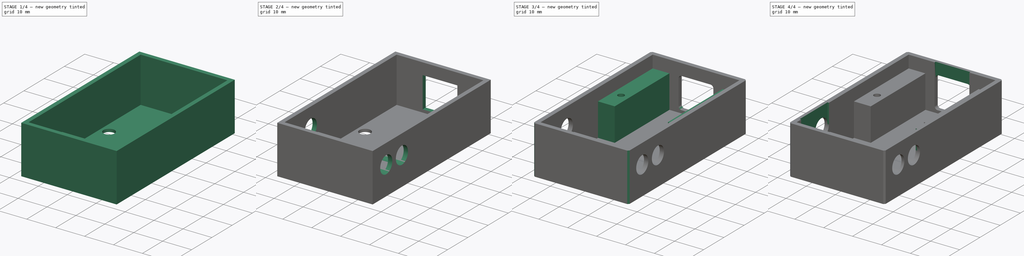
[diagram: build sequence overview — one tinted view per stage of 4, left to right]
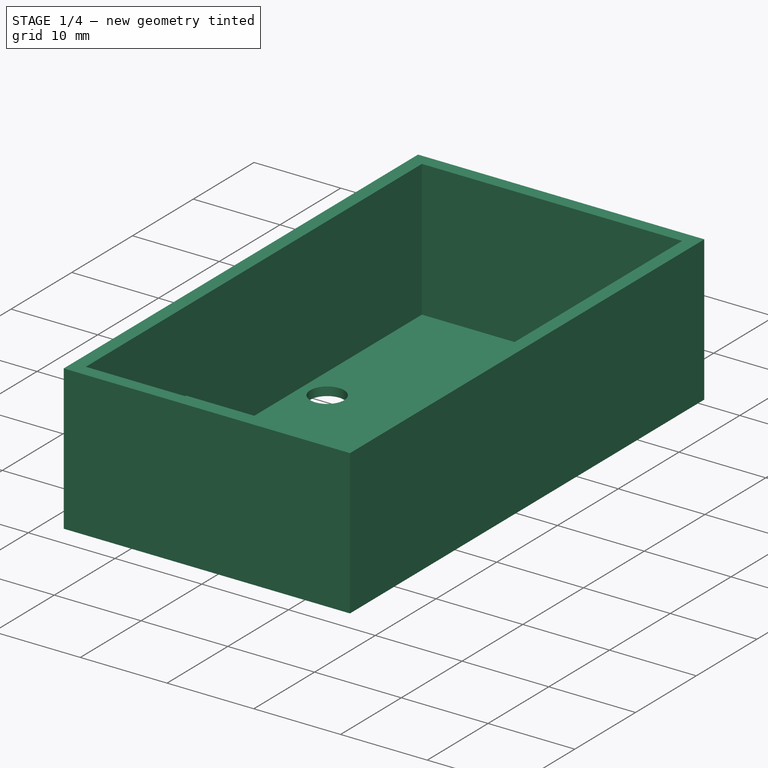
[diagram: stage 1 of 4 — iso view after this stage's code; geometry added in this stage tinted green]
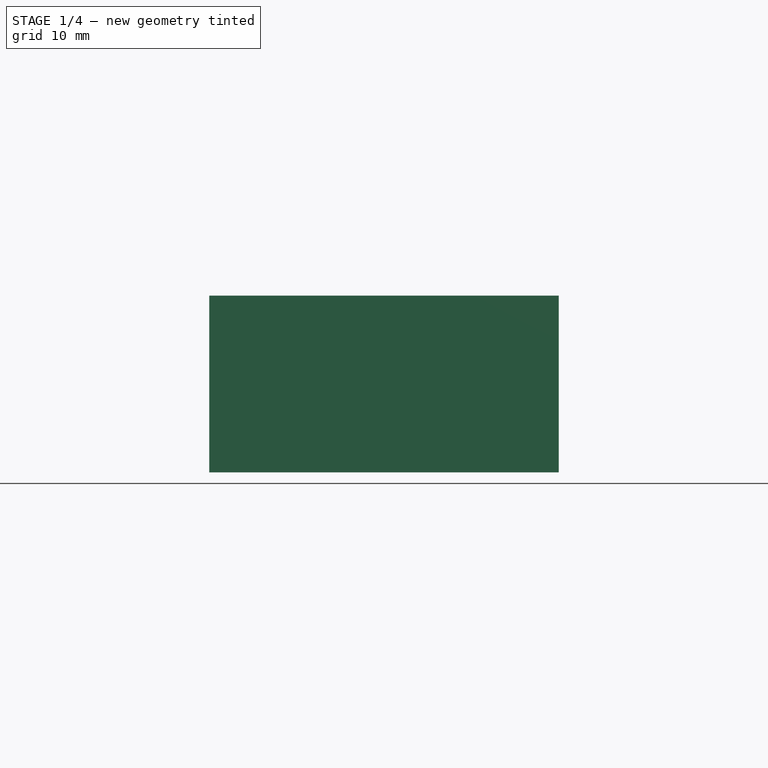
[diagram: stage 1 of 4 — front view after this stage's code; geometry added in this stage tinted green]
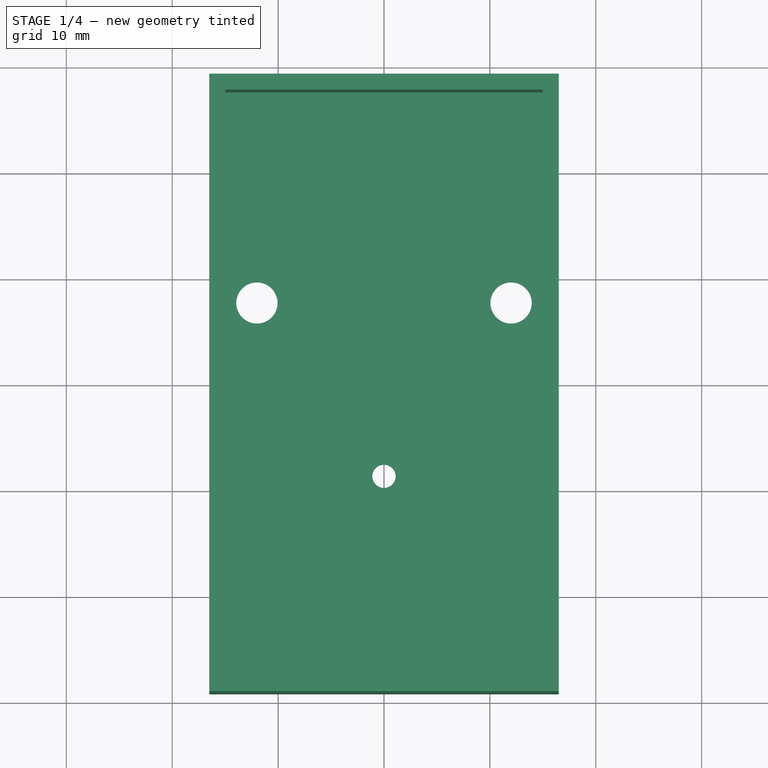
[diagram: stage 1 of 4 — top view after this stage's code; geometry added in this stage tinted green]
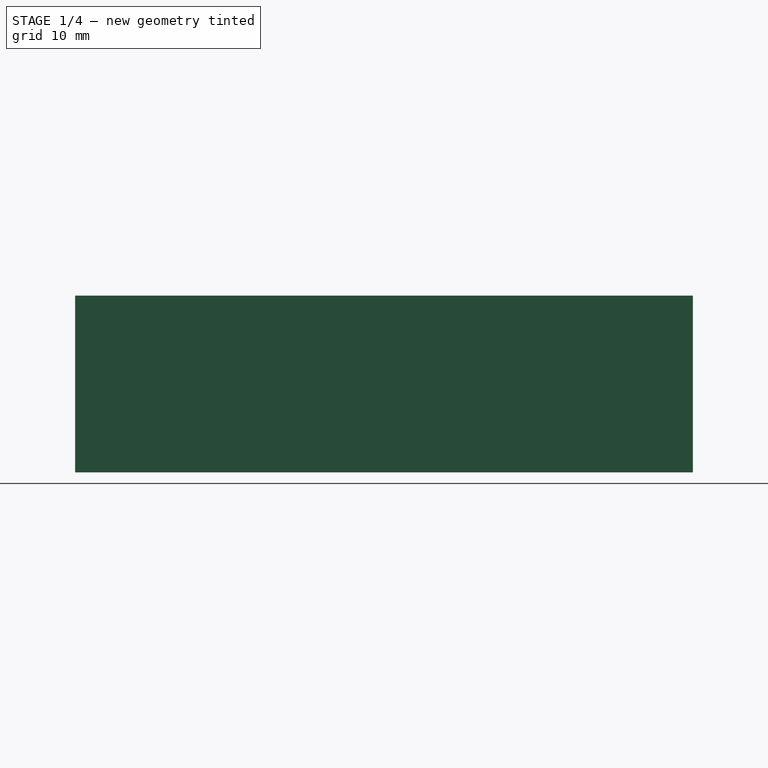
[diagram: stage 1 of 4 — right view after this stage's code; geometry added in this stage tinted green]
FCSTD DOCUMENT  (FreeCAD 1.0R39319 (Git))
Label: bay-bot-1.1
License: All rights reserved
LicenseURL: https://en.wikipedia.org/wiki/All_rights_reserved
objects: Sketcher::SketchObject×9, PartDesign::Pad×4, PartDesign::Pocket×4, PartDesign::Mirrored×2, PartDesign::Hole×1, PartDesign::Chamfer×1, PartDesign::Fillet×1, PartDesign::Body×1
note: 56 computed .brp shape members not serialized (recipe doc carries the construction recipe); baked Part::Feature solids carry a one-line shape summary decoded from their .brp

FEATURE [Sketcher::SketchObject] Sketch
  ArcFitTolerance = 1e-06
  AttachmentSupport = -> [XY_Plane]
  FullyConstrained = true
  MakeInternals = false
  MapMode = 5
  sketch-geometry (14):
    g0: LineSegment StartX=-15 StartY=27.665 StartZ=0 EndX=-15 EndY=-27.665 EndZ=0
    g1: LineSegment StartX=-15 StartY=-27.665 StartZ=0 EndX=15 EndY=-27.665 EndZ=0
    g2: LineSegment StartX=15 StartY=-27.665 StartZ=0 EndX=15 EndY=27.665 EndZ=0
    g3: LineSegment StartX=15 StartY=27.665 StartZ=0 EndX=-15 EndY=27.665 EndZ=0
    g4: GeomPoint [constr] X=0 Y=0 Z=0
    g5: LineSegment [constr] StartX=-14.25 StartY=-26.9165 StartZ=0 EndX=14.25 EndY=-26.9165 EndZ=0
    g6: LineSegment [constr] StartX=14.25 StartY=-26.9165 StartZ=0 EndX=14.25 EndY=26.9165 EndZ=0
    g7: LineSegment [constr] StartX=14.25 StartY=26.9165 StartZ=0 EndX=-14.25 EndY=26.9165 EndZ=0
    g8: LineSegment [constr] StartX=-14.25 StartY=26.9165 StartZ=0 EndX=-14.25 EndY=-26.9165 EndZ=0
    g9: GeomPoint [constr] X=0 Y=0 Z=0
    g10: Circle CenterX=-12 CenterY=7.7865 CenterZ=0 NormalX=0 NormalY=0 NormalZ=1 AngleXU=0 Radius=1.95
    g11: Circle CenterX=12 CenterY=7.7865 CenterZ=0 NormalX=0 NormalY=0 NormalZ=1 AngleXU=0 Radius=1.95
    g12: LineSegment [constr] StartX=-12 StartY=7.7865 StartZ=0 EndX=12 EndY=7.7865 EndZ=0
    g13: Circle CenterX=0 CenterY=-8.5835 CenterZ=0 NormalX=0 NormalY=0 NormalZ=1 AngleXU=0 Radius=1.1
  constraints (34):
    c: Coincident(g0,g1)
    c: Coincident(g1,g2)
    c: Coincident(g2,g3)
    c: Coincident(g3,g0)
    c: Vertical(g0)
    c: Vertical(g2)
    c: Horizontal(g1)
    c: Horizontal(g3)
    c: Symmetric(g2,g0,g4)
    c: Coincident(g4,g-1)
    c: DistanceX(g3,g3) = 30
    c: DistanceY(g2,g2) = 55.33
    c: Coincident(g5,g6)
    c: Coincident(g6,g7)
    c: Coincident(g7,g8)
    c: Coincident(g8,g5)
    c: Horizontal(g5)
    c: Horizontal(g7)
    c: Vertical(g6)
    c: Vertical(g8)
    c: Symmetric(g7,g5,g9)
    c: Coincident(g9,g4)
    c: DistanceX(g7,g7) = 28.5
    c: DistanceY(g6,g6) = 53.833
    c: Equal(g10,g11)
    c: Coincident(g12,g10)
    c: Coincident(g12,g11)
    c: DistanceX(g7,g10) = 2.25
    c: DistanceY(g10,g7) = 19.13
    c: Symmetric(g10,g11,g-2)
    c: Diameter(g10) = 3.9
    c: PointOnObject(g13,g-2)
    c: Distance(g13,g7) = 35.5
    c: Diameter(g13) = 2.2
FEATURE [PartDesign::Pad] Pad
  Direction = (0,0,1)
  Length = 1
  Length2 = 10
  Profile = -> Sketch
  ReferenceAxis = -> Sketch [N_Axis]
  Refine = true
  Suppressed = false
  Type = 0
FEATURE [Sketcher::SketchObject] Sketch001
  ArcFitTolerance = 1e-06
  AttachmentSupport = -> [Pad]
  ExternalGeometry = -> [Pad]
  FullyConstrained = true
  MakeInternals = false
  MapMode = 5
  Placement = pos=(0,0,0) rot=(1,0,0;3.14159rad)
  sketch-geometry (10):
    g0: LineSegment StartX=-16.5 StartY=29.165 StartZ=0 EndX=-16.5 EndY=-29.165 EndZ=0
    g1: LineSegment StartX=-16.5 StartY=-29.165 StartZ=0 EndX=16.5 EndY=-29.165 EndZ=0
    g2: LineSegment StartX=16.5 StartY=-29.165 StartZ=0 EndX=16.5 EndY=29.165 EndZ=0
    g3: LineSegment StartX=16.5 StartY=29.165 StartZ=0 EndX=-16.5 EndY=29.165 EndZ=0
    g4: GeomPoint [constr] X=0 Y=0 Z=0
    g5: LineSegment StartX=-15 StartY=-27.665 StartZ=0 EndX=15 EndY=-27.665 EndZ=0
    g6: LineSegment StartX=15 StartY=-27.665 StartZ=0 EndX=15 EndY=27.665 EndZ=0
    g7: LineSegment StartX=15 StartY=27.665 StartZ=0 EndX=-15 EndY=27.665 EndZ=0
    g8: LineSegment StartX=-15 StartY=27.665 StartZ=0 EndX=-15 EndY=-27.665 EndZ=0
    g9: GeomPoint [constr] X=0 Y=0 Z=0
  constraints (23):
    c: Coincident(g0,g1)
    c: Coincident(g1,g2)
    c: Coincident(g2,g3)
    c: Coincident(g3,g0)
    c: Vertical(g0)
    c: Vertical(g2)
    c: Horizontal(g1)
    c: Horizontal(g3)
    c: Symmetric(g2,g0,g4)
    c: Coincident(g4,g-1)
    c: Distance(g2,g-3) = 1.5
    c: Distance(g-4,g3) = 1.5
    c: Coincident(g5,g6)
    c: Coincident(g6,g7)
    c: Coincident(g7,g8)
    c: Coincident(g8,g5)
    c: Horizontal(g5)
    c: Horizontal(g7)
    c: Vertical(g6)
    c: Vertical(g8)
    c: Symmetric(g7,g5,g9)
    c: Coincident(g9,g4)
    c: Coincident(g6,g-4)
FEATURE [PartDesign::Pad] Pad001
  BaseFeature = -> Pad
  Direction = (0,0,-1)
  Length = 16.7
  Length2 = 10
  Profile = -> Sketch001
  ReferenceAxis = -> Sketch001 [N_Axis]
  Refine = true
  Reversed = true
  Suppressed = false
  Type = 0
FEATURE [Sketcher::SketchObject] Sketch002
  ArcFitTolerance = 1e-06
  AttachmentSupport = -> [Pad001]
  ExternalGeometry = -> [Pad001]
  FullyConstrained = true
  MakeInternals = false
  MapMode = 5
  Placement = pos=(0,0,1) rot=(0,0,1;0rad)
  sketch-geometry (4):
    g0: LineSegment StartX=-15 StartY=-27.665 StartZ=0 EndX=15 EndY=-27.665 EndZ=0
    g1: LineSegment StartX=15 StartY=-27.665 StartZ=0 EndX=15 EndY=-11.165 EndZ=0
    g2: LineSegment StartX=15 StartY=-11.165 StartZ=0 EndX=-15 EndY=-11.165 EndZ=0
    g3: LineSegment StartX=-15 StartY=-11.165 StartZ=0 EndX=-15 EndY=-27.665 EndZ=0
  constraints (10):
    c: Coincident(g0,g1)
    c: Coincident(g1,g2)
    c: Coincident(g2,g3)
    c: Coincident(g3,g0)
    c: Horizontal(g2)
    c: Vertical(g1)
    c: Vertical(g3)
    c: Coincident(g0,g-3)
    c: Coincident(g0,g-3)
    c: DistanceY(g1,g1) = 16.5
FEATURE [PartDesign::Pad] Pad002
  BaseFeature = -> Pad001
  Direction = (0,0,1)
  Length = 6.4
  Length2 = 10
  Profile = -> Sketch002
  ReferenceAxis = -> Sketch002 [N_Axis]
  Refine = true
  Suppressed = false
  Type = 0
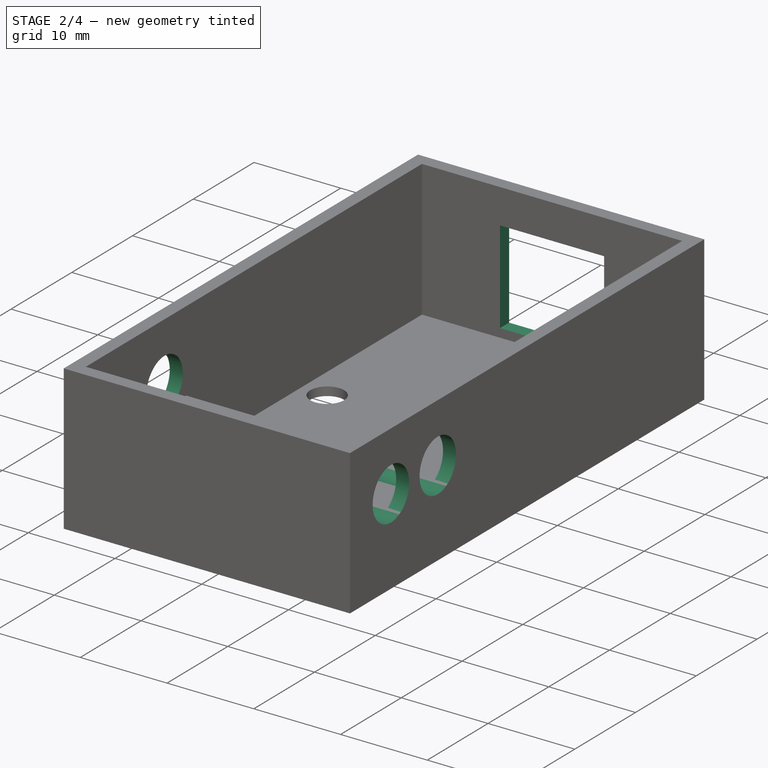
[diagram: stage 2 of 4 — iso view after this stage's code; geometry added in this stage tinted green]
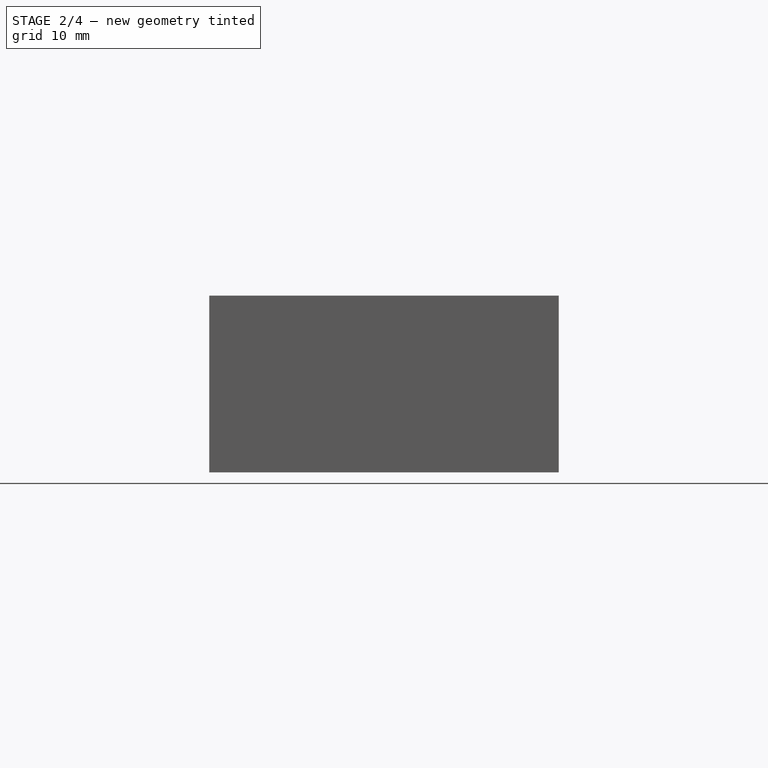
[diagram: stage 2 of 4 — front view after this stage's code; geometry added in this stage tinted green]
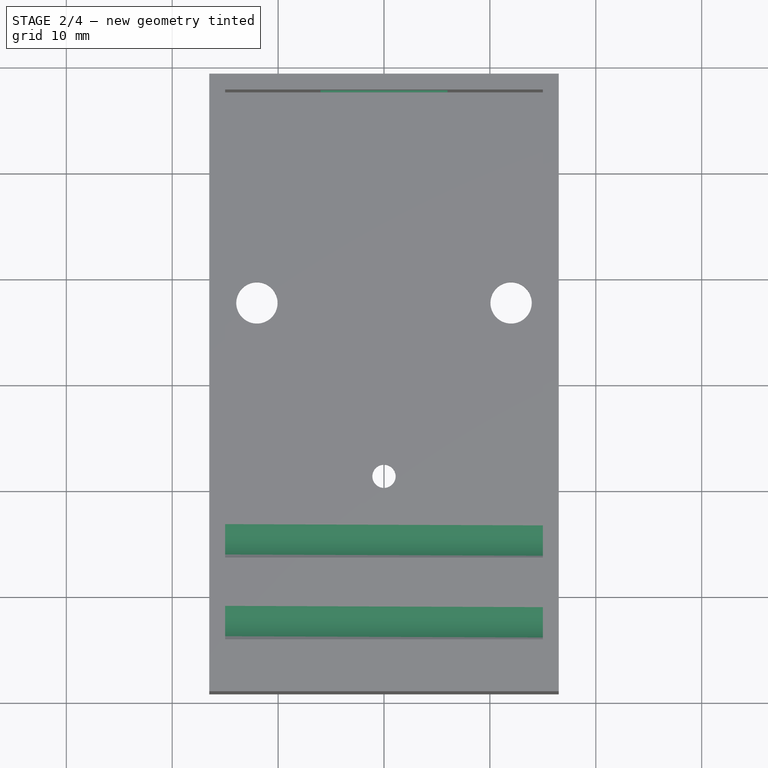
[diagram: stage 2 of 4 — top view after this stage's code; geometry added in this stage tinted green]
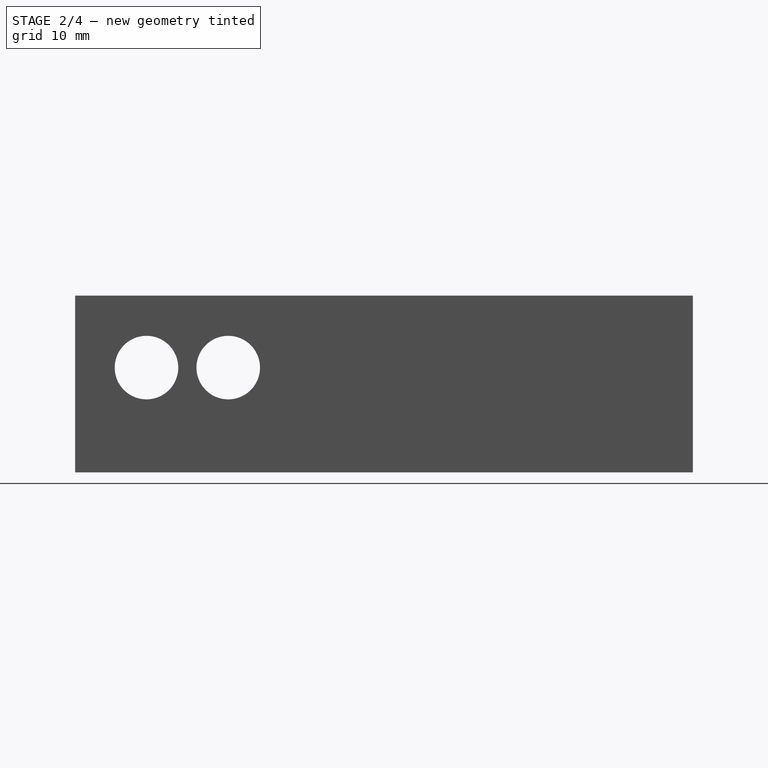
[diagram: stage 2 of 4 — right view after this stage's code; geometry added in this stage tinted green]
FEATURE [Sketcher::SketchObject] Sketch005
  ArcFitTolerance = 1e-06
  AttachmentSupport = -> [Pad002]
  FullyConstrained = true
  MakeInternals = false
  MapMode = 5
  Placement = pos=(16.5,0,0) rot=(0.57735,0.57735,0.57735;2.0944rad)
  sketch-geometry (4):
    g0: Circle CenterX=-22.4285 CenterY=9.9 CenterZ=0 NormalX=0 NormalY=0 NormalZ=1 AngleXU=0 Radius=3
    g1: Circle CenterX=-14.7085 CenterY=9.9 CenterZ=0 NormalX=0 NormalY=0 NormalZ=1 AngleXU=0 Radius=3
    g2: LineSegment [constr] StartX=-22.4285 StartY=9.9 StartZ=0 EndX=-14.7085 EndY=9.9 EndZ=0
    g3: GeomPoint [constr] X=24.7915 Y=8.4 Z=0
  constraints (9):
    c: Coincident(g2,g0)
    c: Coincident(g2,g1)
    c: Horizontal(g2)
    c: Equal(g0,g1)
    c: Diameter(g0) = 6
    c: DistanceX(g2,g2) = 7.72
    c: Distance(g-3,g2) = 5.5
    c: Symmetric(g-4,g-4,g3)
    c: DistanceX(g1,g3) = 39.5
FEATURE [PartDesign::Pocket] Pocket
  BaseFeature = -> Pad002
  Direction = (-1,0,0)
  Length = 17
  Length2 = 5
  Profile = -> Sketch005
  ReferenceAxis = -> Sketch005 [N_Axis]
  Refine = true
  Suppressed = false
  Type = 0
FEATURE [PartDesign::Mirrored] Mirrored
  BaseFeature = -> Pocket
  MirrorPlane = -> YZ_Plane
  Originals = -> [Pocket]
  Refine = true
  Suppressed = false
  TransformMode = 0
FEATURE [Sketcher::SketchObject] Sketch006
  ArcFitTolerance = 1e-06
  AttachmentSupport = -> [Mirrored]
  ExternalGeometry = -> [Mirrored]
  FullyConstrained = true
  MakeInternals = false
  MapMode = 5
  Placement = pos=(0,29.165,0) rot=(0,0.707107,0.707107;3.14159rad)
  sketch-geometry (5):
    g0: LineSegment StartX=-6 StartY=2 StartZ=0 EndX=6 EndY=2 EndZ=0
    g1: LineSegment StartX=6 StartY=2 StartZ=0 EndX=6 EndY=12.7 EndZ=0
    g2: LineSegment StartX=6 StartY=12.7 StartZ=0 EndX=-6 EndY=12.7 EndZ=0
    g3: LineSegment StartX=-6 StartY=12.7 StartZ=0 EndX=-6 EndY=2 EndZ=0
    g4: GeomPoint [constr] X=0 Y=7.35 Z=0
  constraints (13):
    c: Coincident(g0,g1)
    c: Coincident(g1,g2)
    c: Coincident(g2,g3)
    c: Coincident(g3,g0)
    c: Horizontal(g0)
    c: Horizontal(g2)
    c: Vertical(g1)
    c: Vertical(g3)
    c: Symmetric(g2,g0,g4)
    c: PointOnObject(g4,g-2)
    c: DistanceX(g0,g0) = 12
    c: Distance(g2,g-3) = 4
    c: Distance(g-1,g0) = 2
FEATURE [PartDesign::Pocket] Pocket001
  BaseFeature = -> Mirrored
  Direction = (0,-1,2e-16)
  Length = 0
  Length2 = 5
  Profile = -> Sketch006
  ReferenceAxis = -> Sketch006 [N_Axis]
  Refine = true
  Suppressed = false
  Type = 3
  UpToFace = -> Mirrored [Face10]
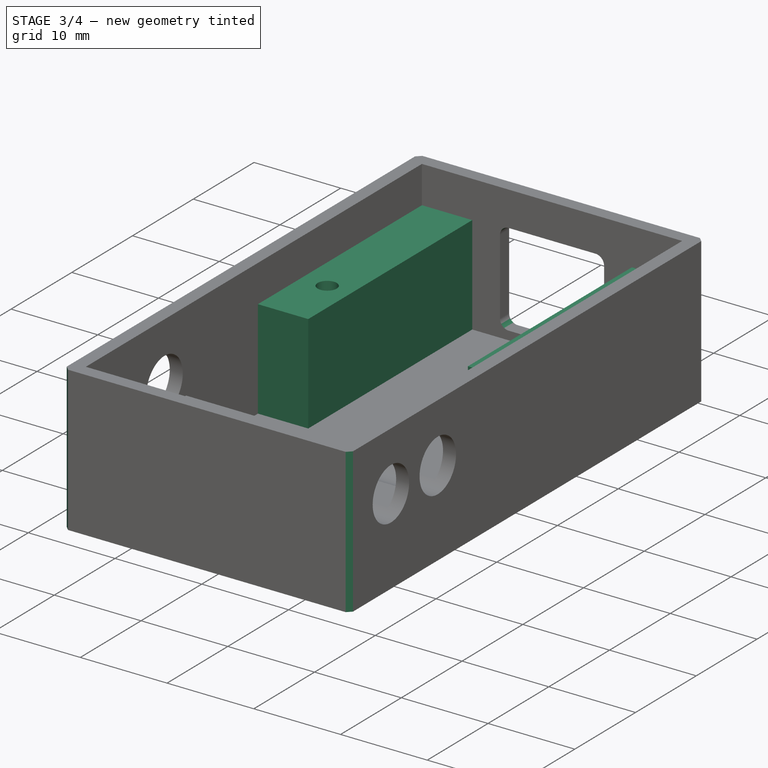
[diagram: stage 3 of 4 — iso view after this stage's code; geometry added in this stage tinted green]
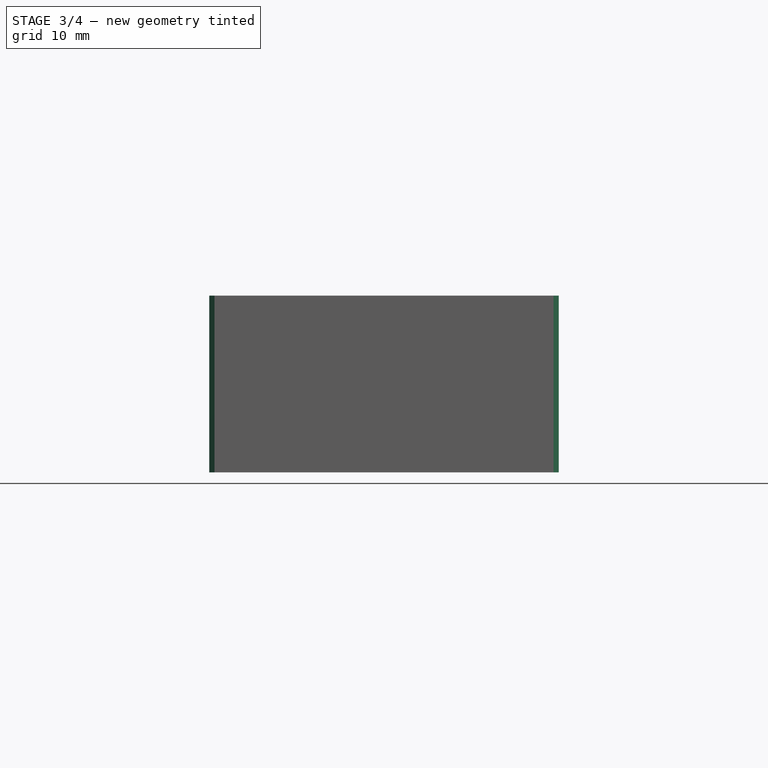
[diagram: stage 3 of 4 — front view after this stage's code; geometry added in this stage tinted green]
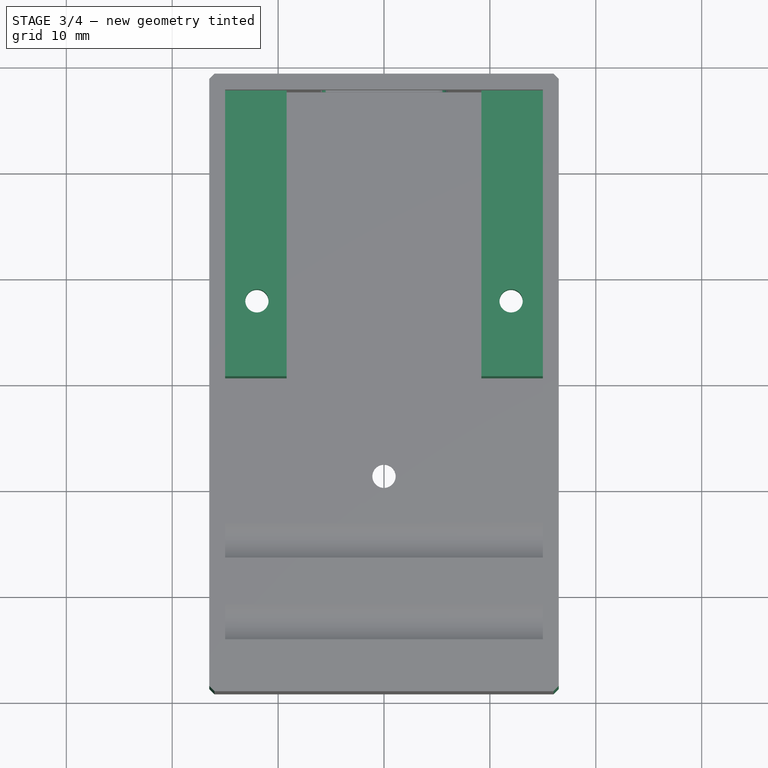
[diagram: stage 3 of 4 — top view after this stage's code; geometry added in this stage tinted green]
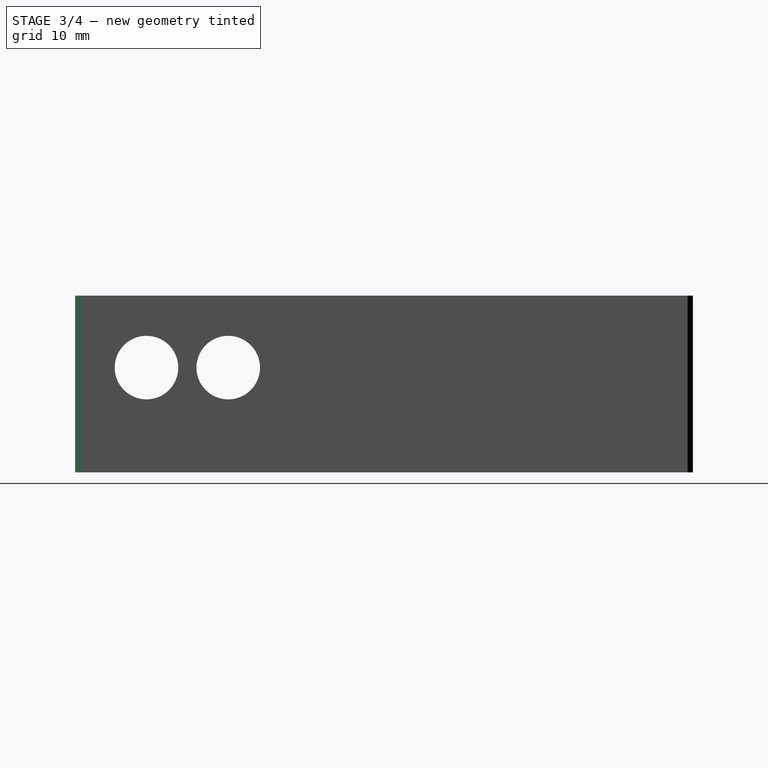
[diagram: stage 3 of 4 — right view after this stage's code; geometry added in this stage tinted green]
FEATURE [Sketcher::SketchObject] Sketch007
  ArcFitTolerance = 1e-06
  AttachmentSupport = -> [Pocket001]
  ExternalGeometry = -> [Pocket001]
  FullyConstrained = true
  MakeInternals = false
  MapMode = 5
  Placement = pos=(0,0,1) rot=(0,0,1;0rad)
  sketch-geometry (8):
    g0: LineSegment StartX=-15 StartY=27.665 StartZ=0 EndX=-15 EndY=0.665 EndZ=0
    g1: LineSegment StartX=-15 StartY=0.665 StartZ=0 EndX=-9.2 EndY=0.665 EndZ=0
    g2: LineSegment StartX=-9.2 StartY=0.665 StartZ=0 EndX=-9.2 EndY=27.665 EndZ=0
    g3: LineSegment StartX=-9.2 StartY=27.665 StartZ=0 EndX=-15 EndY=27.665 EndZ=0
    g4: LineSegment StartX=15 StartY=27.665 StartZ=0 EndX=9.2 EndY=27.665 EndZ=0
    g5: LineSegment StartX=9.2 StartY=27.665 StartZ=0 EndX=9.2 EndY=0.665 EndZ=0
    g6: LineSegment StartX=9.2 StartY=0.665 StartZ=0 EndX=15 EndY=0.665 EndZ=0
    g7: LineSegment StartX=15 StartY=0.665 StartZ=0 EndX=15 EndY=27.665 EndZ=0
  constraints (22):
    c: Coincident(g0,g1)
    c: Coincident(g1,g2)
    c: Coincident(g2,g3)
    c: Coincident(g3,g0)
    c: Vertical(g0)
    c: Vertical(g2)
    c: Horizontal(g1)
    c: Horizontal(g3)
    c: Coincident(g0,g-3)
    c: Coincident(g4,g5)
    c: Coincident(g5,g6)
    c: Coincident(g6,g7)
    c: Coincident(g7,g4)
    c: Horizontal(g4)
    c: Horizontal(g6)
    c: Vertical(g5)
    c: Vertical(g7)
    c: Coincident(g4,g-3)
    c: Equal(g1,g6)
    c: Equal(g2,g5)
    c: Distance(g5,g2) = 18.4
    c: DistanceY(g2,g2) = 27
FEATURE [PartDesign::Pad] Pad003
  BaseFeature = -> Pocket001
  Direction = (0,0,1)
  Length = 11.4
  Length2 = 10
  Profile = -> Sketch007
  ReferenceAxis = -> Sketch007 [N_Axis]
  Refine = true
  Suppressed = false
  Type = 0
FEATURE [Sketcher::SketchObject] Sketch008
  ArcFitTolerance = 1e-06
  AttachmentSupport = -> [Pad003]
  ExternalGeometry = -> [Pad003]
  FullyConstrained = true
  MakeInternals = false
  MapMode = 5
  Placement = pos=(0,0,0) rot=(1,0,0;3.14159rad)
  sketch-geometry (2):
    g0: Circle CenterX=-12 CenterY=-7.7865 CenterZ=0 NormalX=0 NormalY=0 NormalZ=1 AngleXU=0 Radius=1.95
    g1: Circle CenterX=12 CenterY=-7.7865 CenterZ=0 NormalX=0 NormalY=0 NormalZ=1 AngleXU=0 Radius=1.95
  constraints (4):
    c: Coincident(g0,g-3)
    c: Coincident(g1,g-4)
    c: Equal(g0,g1)
    c: Equal(g0,g-3)
FEATURE [PartDesign::Hole] Hole
  BaseFeature = -> Pad003
  CustomThreadClearance = 0
  Depth = 139.516
  DepthType = 1
  Diameter = 2.2
  DrillForDepth = false
  DrillPoint = 1
  DrillPointAngle = 118
  HoleCutCountersinkAngle = 90
  HoleCutCustomValues = false
  HoleCutDepth = 7.4
  HoleCutDiameter = 4
  HoleCutType = 1
  ModelThread = false
  Profile = -> Sketch008
  Refine = true
  Suppressed = false
  Tapered = false
  TaperedAngle = 90
  ThreadClass = 0
  ThreadDepth = 139.516
  ThreadDepthType = 0
  ThreadDirection = 0
  ThreadFit = 0
  ThreadSize = 0
  ThreadType = 0
  Threaded = false
  UseCustomThreadClearance = false
FEATURE [PartDesign::Chamfer] Chamfer001
  Angle = 45
  Base = -> Hole [Edge7,Edge1,Edge21,Edge4]
  BaseFeature = -> Hole
  ChamferType = 0
  FlipDirection = false
  Refine = true
  Size = 0.5
  Size2 = 1
  SupportTransform = false
  Suppressed = false
  UseAllEdges = false
FEATURE [PartDesign::Fillet] Fillet
  Base = -> Chamfer001 [Edge91,Edge92,Edge94,Edge93]
  BaseFeature = -> Chamfer001
  Radius = 1
  Refine = true
  SupportTransform = false
  Suppressed = false
  UseAllEdges = false
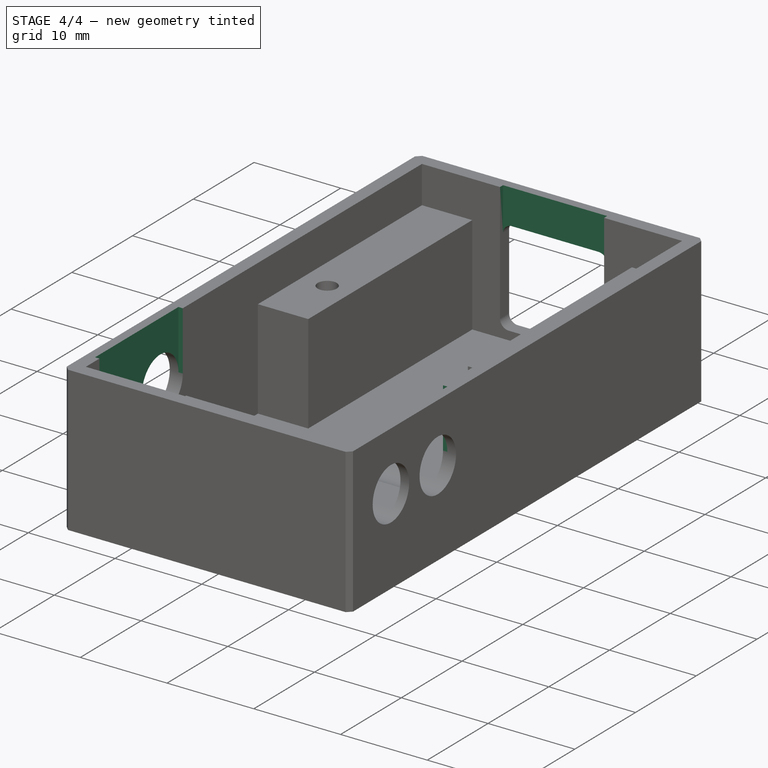
[diagram: stage 4 of 4 — iso view after this stage's code; geometry added in this stage tinted green]
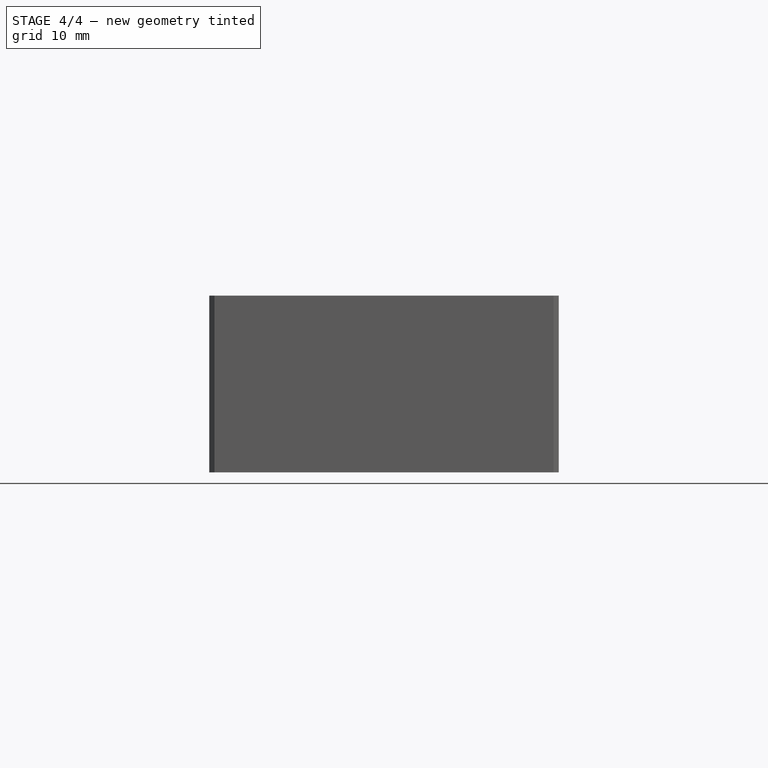
[diagram: stage 4 of 4 — front view after this stage's code; geometry added in this stage tinted green]
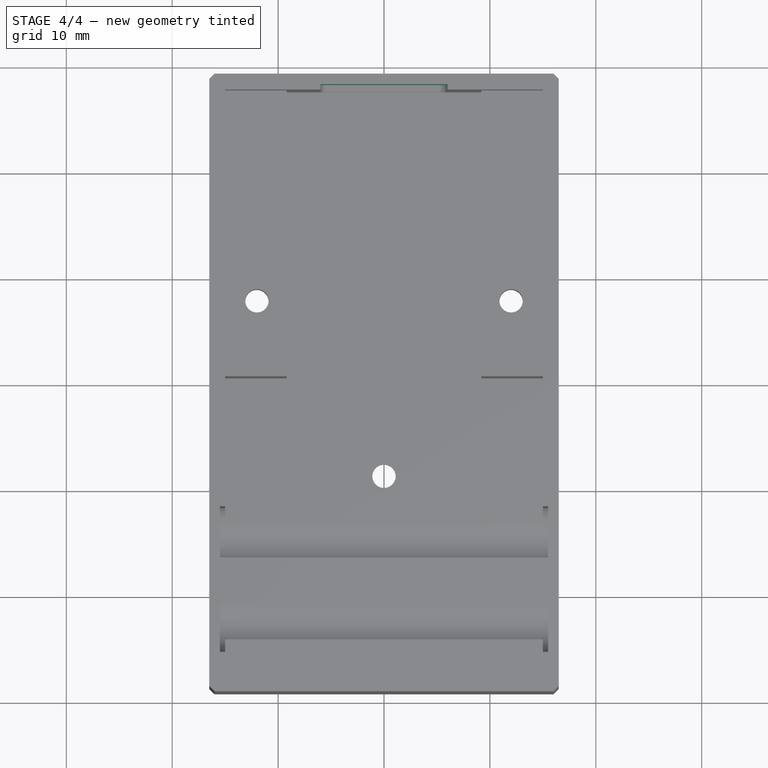
[diagram: stage 4 of 4 — top view after this stage's code; geometry added in this stage tinted green]
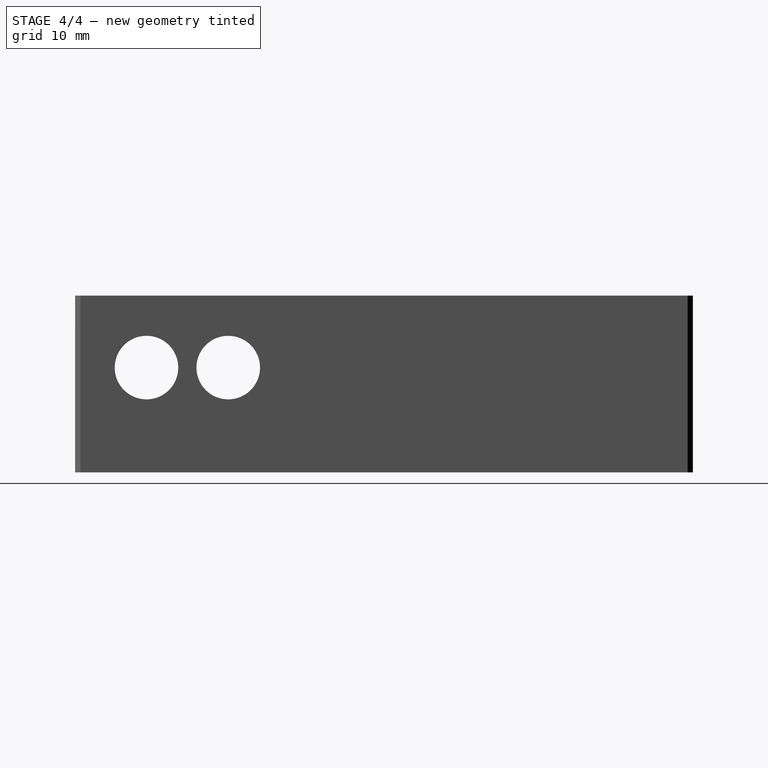
[diagram: stage 4 of 4 — right view after this stage's code; geometry added in this stage tinted green]
FEATURE [Sketcher::SketchObject] Sketch011
  ArcFitTolerance = 1e-06
  ExternalGeometry = -> [Fillet]
  FullyConstrained = true
  MakeInternals = false
  MapMode = 5
  Placement = pos=(15,0,0) rot=(0.57735,-0.57735,-0.57735;2.0944rad)
  sketch-geometry (6):
    g0: LineSegment StartX=11.7085 StartY=9.9 StartZ=0 EndX=11.7085 EndY=16.7 EndZ=0
    g1: LineSegment StartX=11.7085 StartY=16.7 StartZ=0 EndX=25.4285 EndY=16.7 EndZ=0
    g2: LineSegment StartX=25.4285 StartY=16.7 StartZ=0 EndX=25.4285 EndY=9.9 EndZ=0
    g3: LineSegment StartX=11.7085 StartY=9.9 StartZ=0 EndX=16.3668 EndY=7.4 EndZ=0
    g4: LineSegment StartX=16.3668 StartY=7.4 StartZ=0 EndX=20.7702 EndY=7.4 EndZ=0
    g5: LineSegment StartX=20.7702 StartY=7.4 StartZ=0 EndX=25.4285 EndY=9.9 EndZ=0
  constraints (16):
    c: Coincident(g0,g1)
    c: Horizontal(g1)
    c: Coincident(g1,g2)
    c: Vertical(g2)
    c: Vertical(g0)
    c: Coincident(g0,g3)
    c: Coincident(g3,g4)
    c: Horizontal(g4)
    c: Coincident(g4,g5)
    c: Coincident(g5,g2)
    c: Equal(g3,g5)
    c: PointOnObject(g0,g-3)
    c: Coincident(g0,g-4)
    c: Coincident(g3,g-4)
    c: Horizontal(g0,g2)
    c: Tangent(g2,g-5)
FEATURE [PartDesign::Pocket] Pocket003
  BaseFeature = -> Fillet
  Direction = (1,-1e-16,1e-16)
  Length = 0.5
  Length2 = 5
  Profile = -> Sketch011
  ReferenceAxis = -> Sketch011 [N_Axis]
  Refine = true
  Suppressed = false
  Type = 0
FEATURE [PartDesign::Mirrored] Mirrored001
  BaseFeature = -> Pocket003
  MirrorPlane = -> YZ_Plane
  Originals = -> [Pocket003]
  Refine = true
  Suppressed = false
  TransformMode = 0
FEATURE [Sketcher::SketchObject] Sketch012
  ArcFitTolerance = 1e-06
  AttachmentSupport = -> [Mirrored001]
  ExternalGeometry = -> [Mirrored001]
  FullyConstrained = true
  MakeInternals = false
  MapMode = 5
  Placement = pos=(0,27.665,0) rot=(1,0,0;1.5708rad)
  sketch-geometry (4):
    g0: LineSegment StartX=-6 StartY=16.7 StartZ=0 EndX=-6 EndY=7.35 EndZ=0
    g1: LineSegment StartX=-6 StartY=7.35 StartZ=0 EndX=6 EndY=7.35 EndZ=0
    g2: LineSegment StartX=6 StartY=7.35 StartZ=0 EndX=6 EndY=16.7 EndZ=0
    g3: LineSegment StartX=6 StartY=16.7 StartZ=0 EndX=-6 EndY=16.7 EndZ=0
  constraints (11):
    c: Coincident(g0,g1)
    c: Coincident(g1,g2)
    c: Coincident(g2,g3)
    c: Coincident(g3,g0)
    c: Vertical(g0)
    c: Vertical(g2)
    c: Horizontal(g1)
    c: Horizontal(g3)
    c: PointOnObject(g0,g-5)
    c: Symmetric(g-4,g-4,g1)
    c: PointOnObject(g0,g-3)
FEATURE [PartDesign::Pocket] Pocket004
  BaseFeature = -> Mirrored001
  Direction = (0,1,-2e-16)
  Length = 0.5
  Length2 = 5
  Profile = -> Sketch012
  ReferenceAxis = -> Sketch012 [N_Axis]
  Refine = true
  Suppressed = false
  Type = 0
FEATURE [PartDesign::Body] Body
  AllowCompound = false
  Group = -> [Sketch,Pad,Sketch001,Pad001,Sketch002,Pad002,Sketch005,Pocket,Mirrored,Sketch006,Pocket001,Sketch007,Pad003,Sketch008,Hole,Chamfer001,Fillet,Sketch011,Pocket003,Mirrored001,Sketch012,Pocket004]
  Origin = -> Origin
  Tip = -> Pocket004
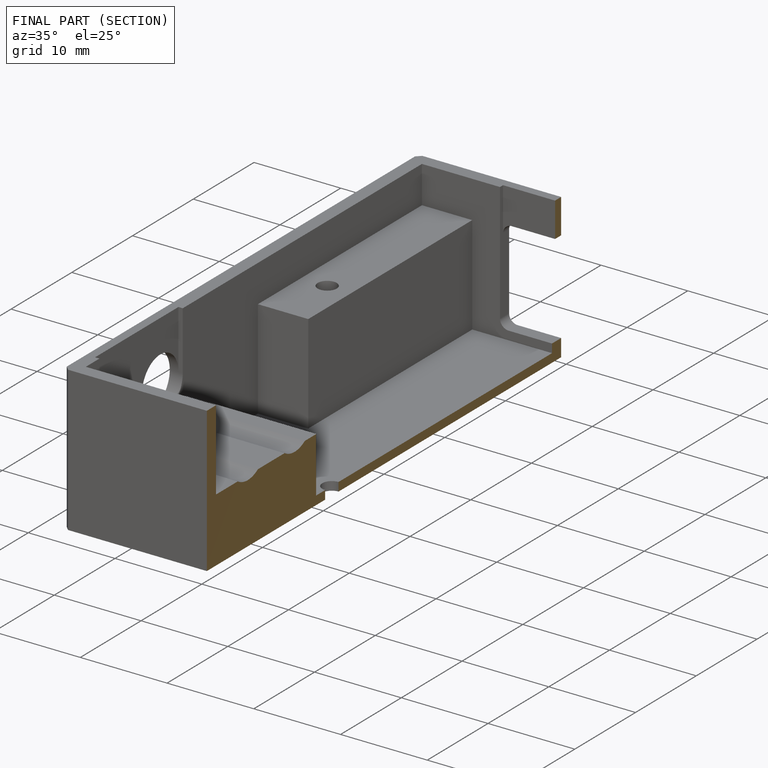
[diagram: finished part — half-section view (interior)]
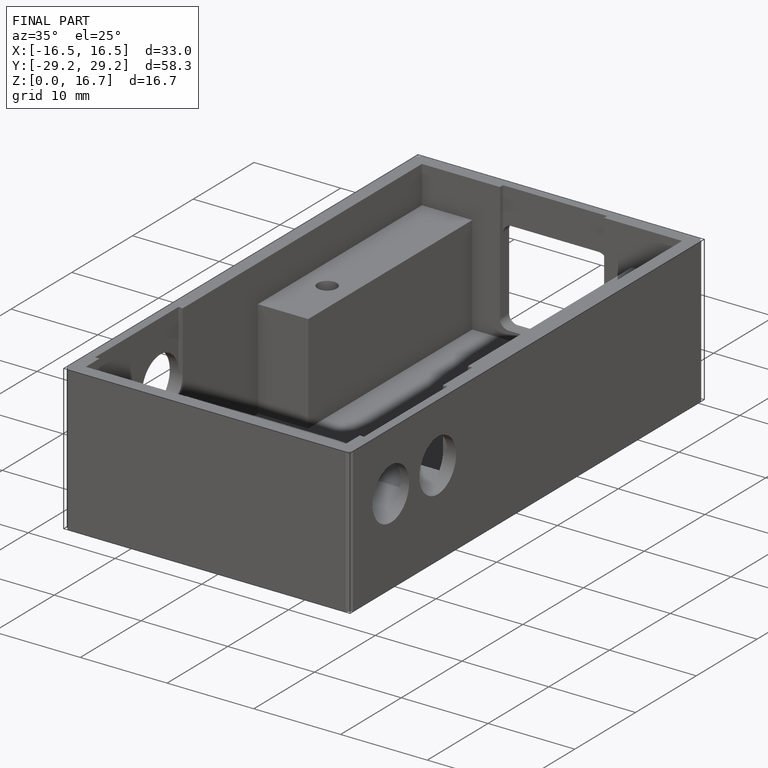
[diagram: finished part — iso view with bounding-box wireframe]
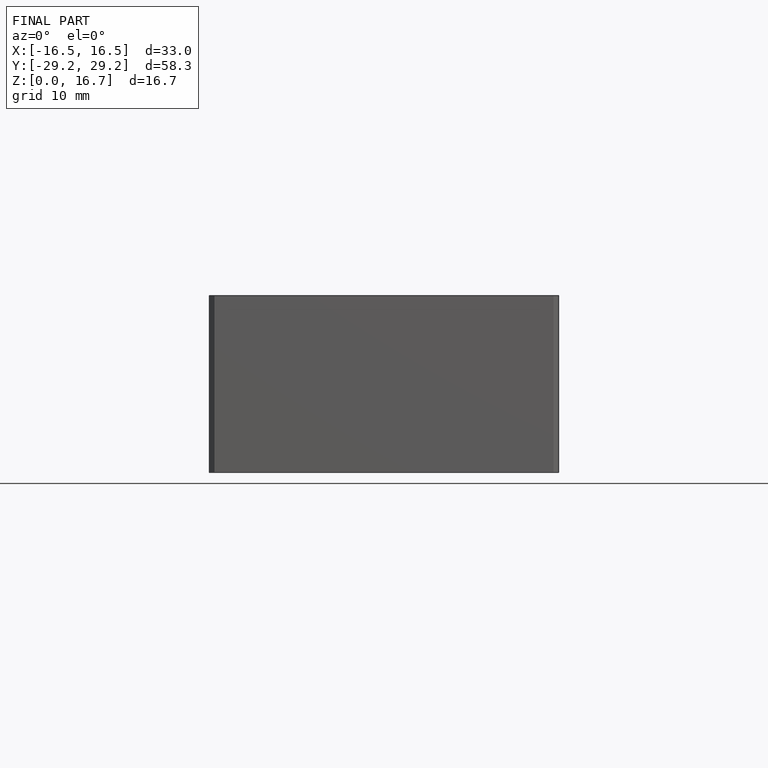
[diagram: finished part — front view with bounding-box wireframe]
